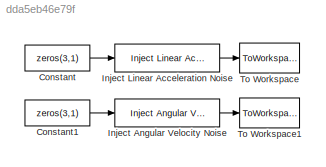
MODEL slx_dda5eb46e79f
KIND model
CONFIG AbsTol = auto
CONFIG EnableMultiTasking = off
CONFIG FixedStep = auto
CONFIG MaxStep = auto
CONFIG MinStep = auto
CONFIG RelTol = 1e-3
CONFIG SampleTimeConstraint = Unconstrained
CONFIG Solver = VariableStepAuto
CONFIG SolverName = VariableStepAuto
CONFIG StartTime = 0.0
CONFIG StopTime = 10.0
BLOCK [Constant] Constant
  Value = zeros(3,1)
BLOCK [Constant] Constant1
  Value = zeros(3,1)
BLOCK [Reference] Inject Angular Velocity Noise  REF=lib_StateEstimation/Inject Angular Velocity Noise
  Ports = [1, 1]
  SourceBlock = lib_StateEstimation/Inject Angular Velocity Noise
  SourceType = SubSystem
BLOCK [Reference] Inject Linear Acceleration Noise  REF=lib_StateEstimation/Inject Linear Acceleration Noise
  Ports = [1, 1]
  SourceBlock = lib_StateEstimation/Inject Linear Acceleration Noise
  SourceType = SubSystem
BLOCK [ToWorkspace] To Workspace
  FixptAsFi = on
  MaxDataPoints = inf
  Ports = [1]
  SampleTime = -1
  Save2DSignal = 3-D array (concatenate along third dimension)
  SaveFormat = Timeseries
  VariableName = a_noisy
BLOCK [ToWorkspace] To Workspace1
  FixptAsFi = on
  MaxDataPoints = inf
  Ports = [1]
  SampleTime = -1
  Save2DSignal = 3-D array (concatenate along third dimension)
  SaveFormat = Timeseries
  VariableName = w_noisy
LINE Constant1:1 -> Inject Angular Velocity Noise:1
LINE Constant:1 -> Inject Linear Acceleration Noise:1
LINE Inject Angular Velocity Noise:1 -> To Workspace1:1
LINE Inject Linear Acceleration Noise:1 -> To Workspace:1
